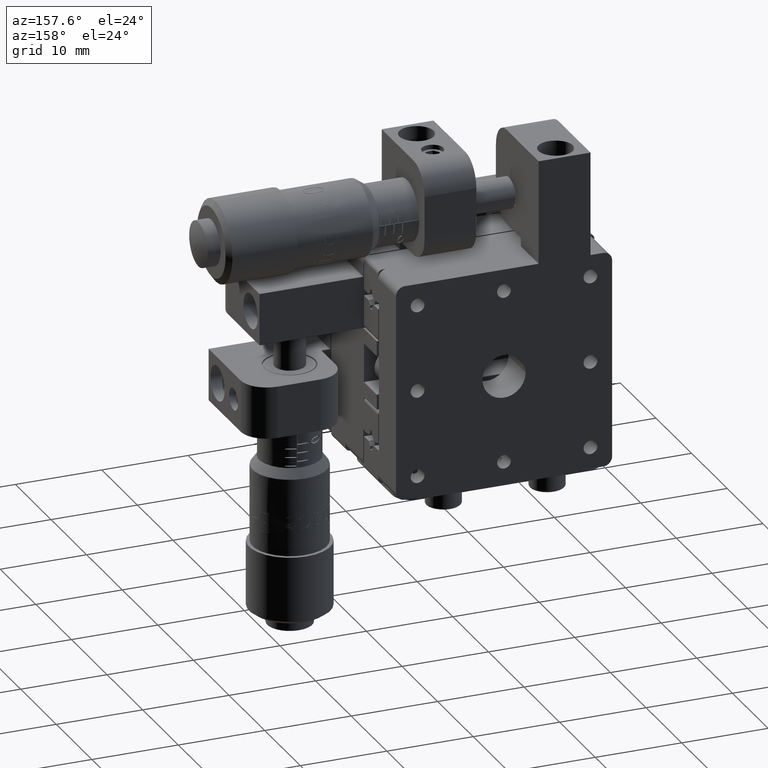
[diagram: clean part render]
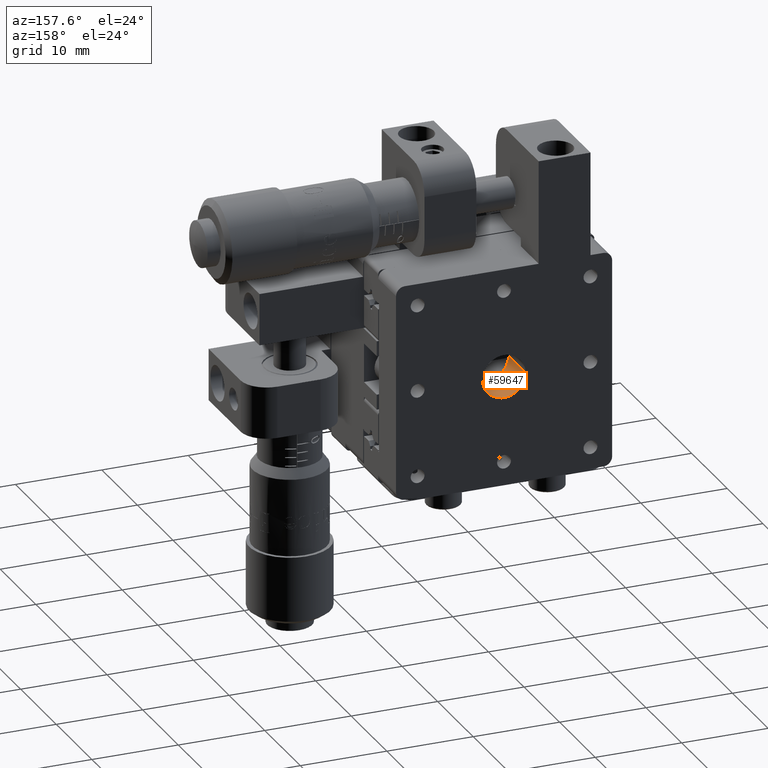
[diagram: same view with one face highlighted and labeled with its STEP entity id]
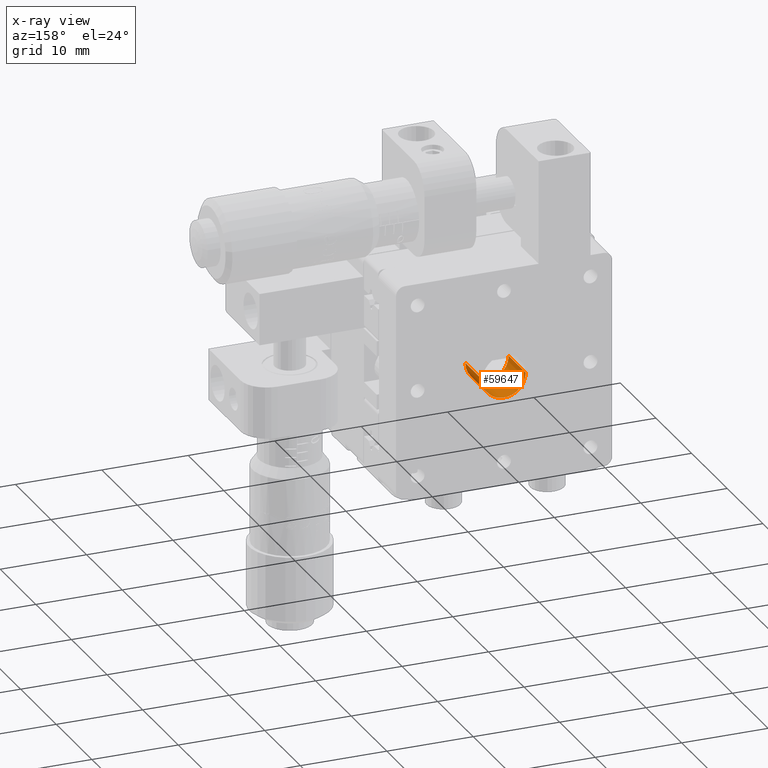
[diagram: x-ray of the same camera — body ghosted, the highlighted face saturated]
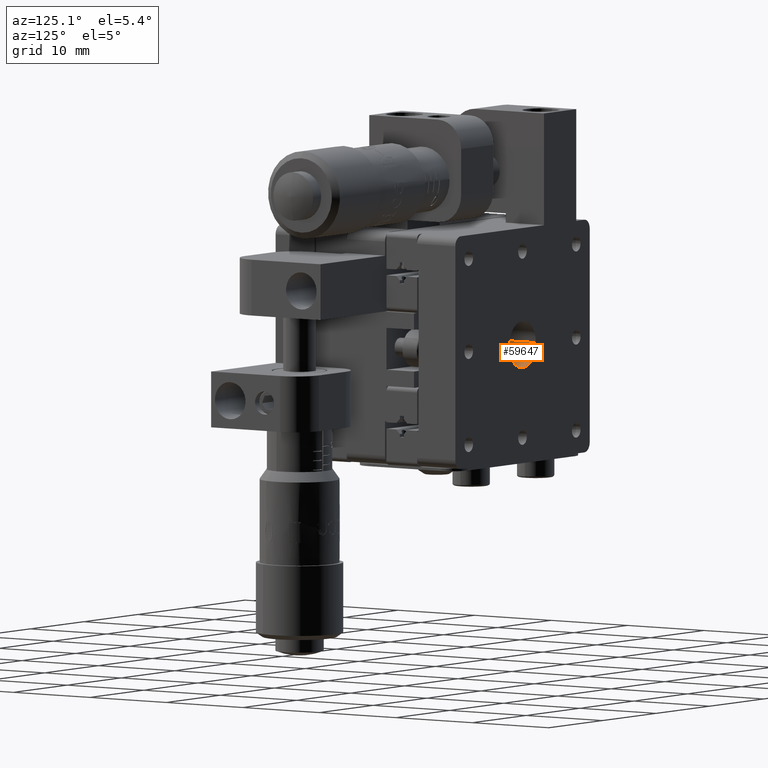
[diagram: same view with one face highlighted and labeled with its STEP entity id]
A machine part, auxiliary view. The second image highlights one B-rep face of the part: STEP entity #59647.
The next image is the same camera in x-ray: the body ghosted, the highlighted face saturated — about 0% of this face is hidden behind the body in this view.
A second angle (auxiliary view) of the same face is appended — the face is thin or edge-on in the first view.
In plain terms, the highlighted cylindrical surface (edge-blend (fillet) strip) has radius 2.5 mm, axis along (0, 1, -0).
Its self-contained STEP definition (entity closure, byte-faithful):
#1538 = LINE ( 'NONE', #37848, #27197 ) ;
#3164 = VERTEX_POINT ( 'NONE', #72204 ) ;
#6133 = CARTESIAN_POINT ( 'NONE',  ( 2.500000000000056400, 14.39999999999997500, -3.431156557733987300E-014 ) ) ;
#7017 = VERTEX_POINT ( 'NONE', #25409 ) ;
#17406 = DIRECTION ( 'NONE',  ( -1.000000000000000000, 1.387778780781449400E-015, 3.330669073875456800E-016 ) ) ;
#18367 = EDGE_CURVE ( 'NONE', #54488, #7017, #94529, .T. ) ;
#19257 = FACE_OUTER_BOUND ( 'NONE', #69496, .T. ) ;
#19621 = DIRECTION ( 'NONE',  ( 3.330669073875456800E-016, 6.938893903907247100E-016, 1.000000000000000000 ) ) ;
#21426 = AXIS2_PLACEMENT_3D ( 'NONE', #35226, #34581, #19621 ) ;
#25086 = EDGE_CURVE ( 'NONE', #60283, #3164, #57714, .T. ) ;
#25409 = CARTESIAN_POINT ( 'NONE',  ( -2.499999999999920100, 14.39999999999998300, -3.402491436200364500E-014 ) ) ;
#27197 = VECTOR ( 'NONE', #76095, 1000.000000000000000 ) ;
#31531 = AXIS2_PLACEMENT_3D ( 'NONE', #77102, #76466, #17406 ) ;
#34581 = DIRECTION ( 'NONE',  ( 1.266761830690952200E-015, 1.000000000000000000, -5.964291363288239400E-016 ) ) ;
#35226 = CARTESIAN_POINT ( 'NONE',  ( 6.213857813854108200E-014, 9.599999999999976600, -3.271253838684318000E-014 ) ) ;
#37848 = CARTESIAN_POINT ( 'NONE',  ( 2.500000000000061700, 14.39999999999997400, -3.538408719915453000E-014 ) ) ;
#38793 = CARTESIAN_POINT ( 'NONE',  ( -2.499999999999925400, 14.39999999999998100, -3.402491436200364500E-014 ) ) ;
#45491 = VECTOR ( 'NONE', #46249, 1000.000000000000000 ) ;
#46249 = DIRECTION ( 'NONE',  ( 1.266761830690952200E-015, 1.000000000000000000, -4.468840090894440300E-016 ) ) ;
#47491 = ORIENTED_EDGE ( 'NONE', *, *, #18367, .T. ) ;
#49547 = ORIENTED_EDGE ( 'NONE', *, *, #25086, .F. ) ;
#50173 = LINE ( 'NONE', #38793, #45491 ) ;
#54488 = VERTEX_POINT ( 'NONE', #6133 ) ;
#56214 = AXIS2_PLACEMENT_3D ( 'NONE', #92220, #85668, #76940 ) ;
#57714 = CIRCLE ( 'NONE', #21426, 2.499999999999993300 ) ;
#59647 = ADVANCED_FACE ( 'NONE', ( #19257 ), #68032, .F. ) ;
#60283 = VERTEX_POINT ( 'NONE', #73084 ) ;
#68032 = CYLINDRICAL_SURFACE ( 'NONE', #31531, 2.499999999999993300 ) ;
#69496 = EDGE_LOOP ( 'NONE', ( #49547, #83148, #47491, #79541 ) ) ;
#72204 = CARTESIAN_POINT ( 'NONE',  ( -2.499999999999931200, 9.599999999999980100, -3.295239274018897600E-014 ) ) ;
#73084 = CARTESIAN_POINT ( 'NONE',  ( 2.500000000000055500, 9.599999999999973000, -3.431156557733987300E-014 ) ) ;
#76095 = DIRECTION ( 'NONE',  ( 1.266761830690952200E-015, 1.000000000000000000, -4.468840090894440300E-016 ) ) ;
#76466 = DIRECTION ( 'NONE',  ( 1.266761830690952200E-015, 1.000000000000000000, -4.468840090894440300E-016 ) ) ;
#76940 = DIRECTION ( 'NONE',  ( -1.000000000000000000, 1.387778780781452200E-015, 3.330669073875463200E-016 ) ) ;
#77102 = CARTESIAN_POINT ( 'NONE',  ( 6.821903492585765400E-014, 14.39999999999997700, -3.485758163047250600E-014 ) ) ;
#77608 = EDGE_CURVE ( 'NONE', #3164, #7017, #50173, .T. ) ;
#79541 = ORIENTED_EDGE ( 'NONE', *, *, #77608, .F. ) ;
#83148 = ORIENTED_EDGE ( 'NONE', *, *, #90004, .T. ) ;
#85668 = DIRECTION ( 'NONE',  ( 1.266761830690952200E-015, 1.000000000000000000, -4.468840090894440300E-016 ) ) ;
#90004 = EDGE_CURVE ( 'NONE', #60283, #54488, #1538, .T. ) ;
#92220 = CARTESIAN_POINT ( 'NONE',  ( 6.821903492585765400E-014, 14.39999999999997900, -3.485758163047250600E-014 ) ) ;
#94529 = CIRCLE ( 'NONE', #56214, 2.499999999999988500 ) ;